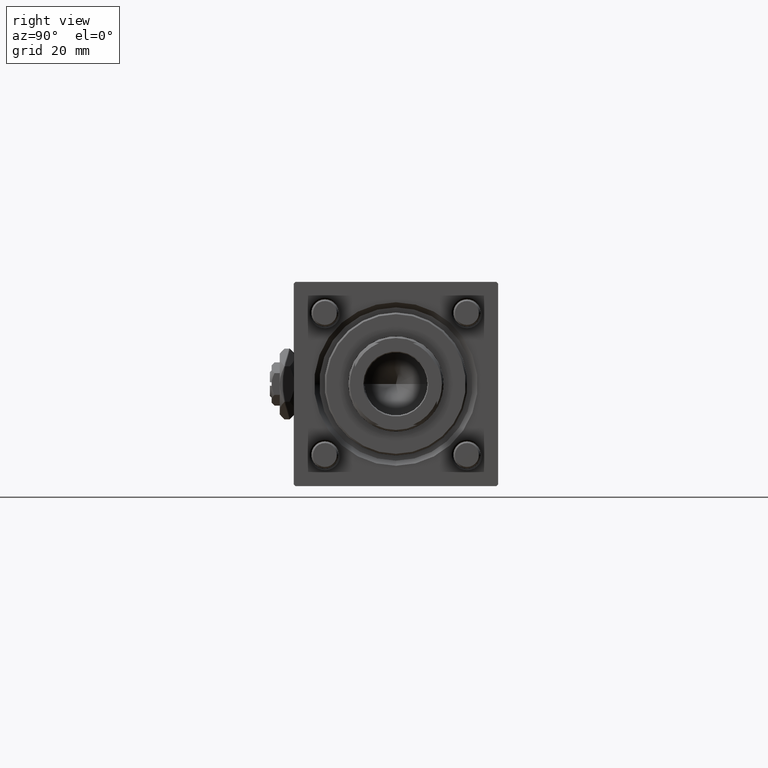
[diagram: clean part render]
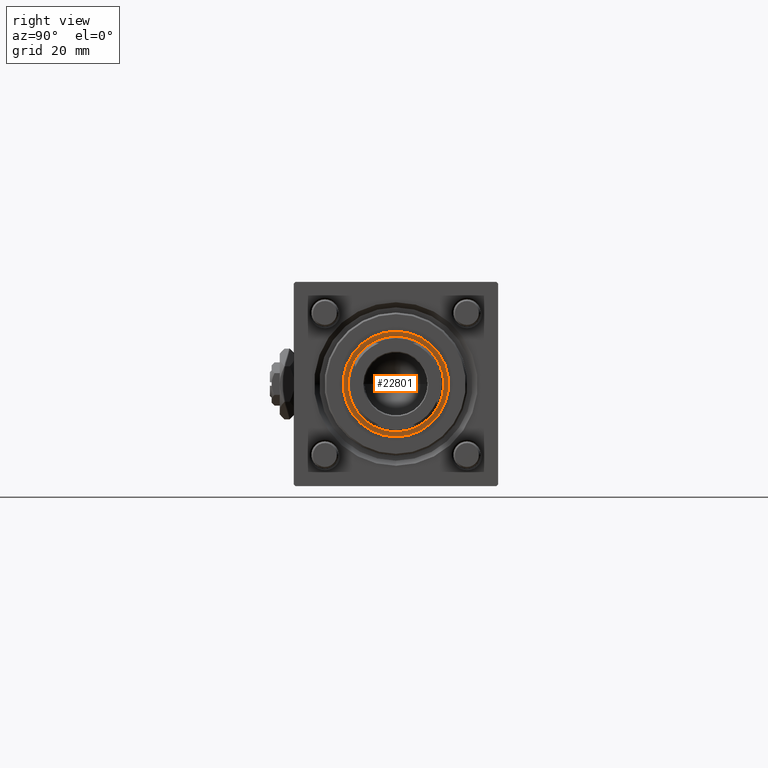
[diagram: same view with one face highlighted and labeled with its STEP entity id]
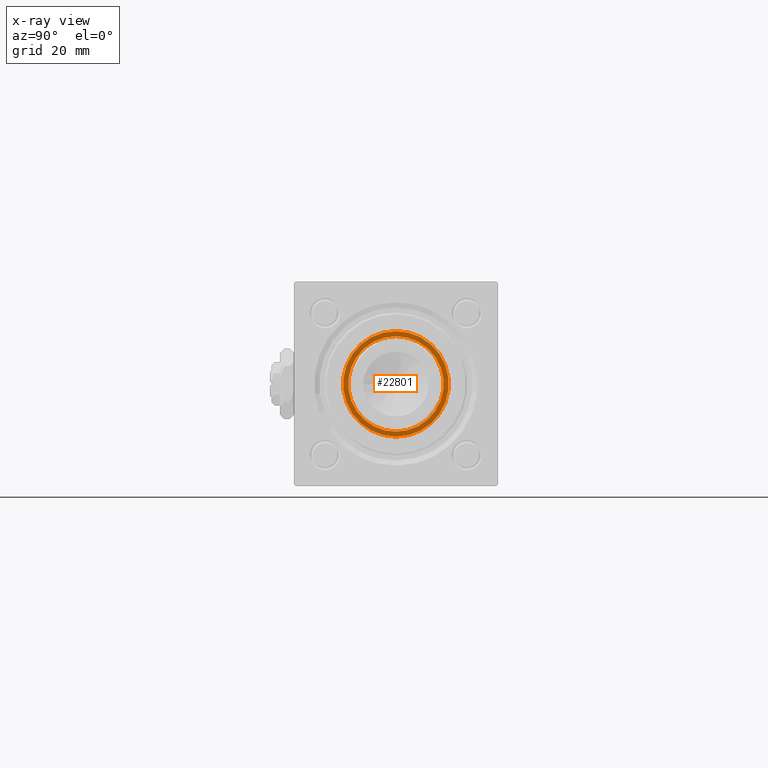
[diagram: x-ray of the same camera — body ghosted, the highlighted face saturated]
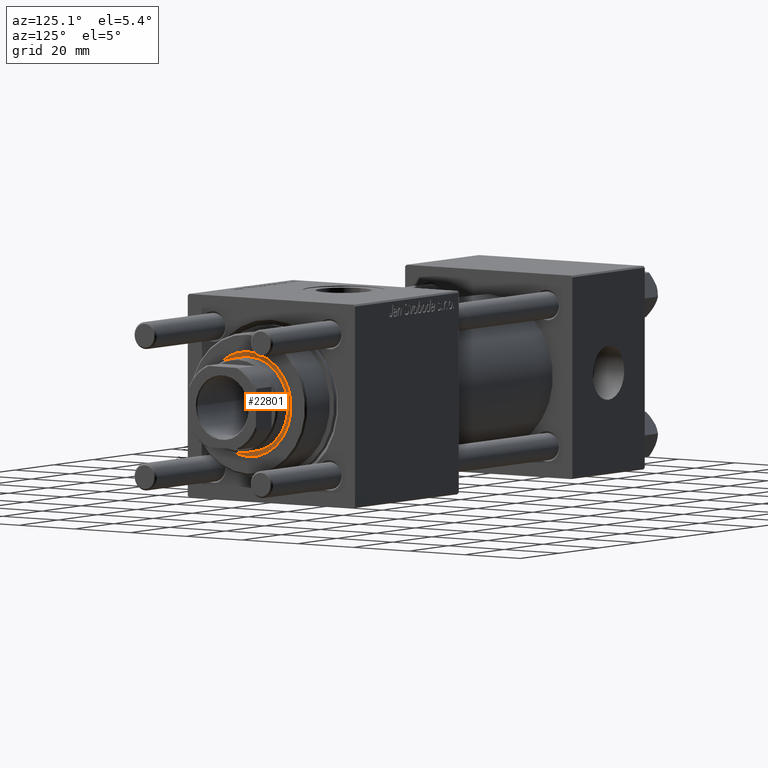
[diagram: same view with one face highlighted and labeled with its STEP entity id]
A machine part, right view. The second image highlights one B-rep face of the part: STEP entity #22801.
The next image is the same camera in x-ray: the body ghosted, the highlighted face saturated — about 0% of this face is hidden behind the body in this view.
A second angle (auxiliary view) of the same face is appended — the face is thin or edge-on in the first view.
In plain terms, the highlighted planar face has unit normal (1, 0, 0).
Its self-contained STEP definition (entity closure, byte-faithful):
#2033 = EDGE_LOOP ( 'NONE', ( #52396, #53183 ) ) ;
#9201 = VERTEX_POINT ( 'NONE', #15819 ) ;
#14238 = VERTEX_POINT ( 'NONE', #16444 ) ;
#15819 = CARTESIAN_POINT ( 'NONE',  ( 15.50000000000000000, 0.000000000000000000, 40.20000000000000284 ) ) ;
#16444 = CARTESIAN_POINT ( 'NONE',  ( 14.00000000000000178, 0.000000000000000000, 40.20000000000000284 ) ) ;
#16899 = AXIS2_PLACEMENT_3D ( 'NONE', #39539, #53436, #53734 ) ;
#17826 = DIRECTION ( 'NONE',  ( 0.000000000000000000, 0.000000000000000000, 1.000000000000000000 ) ) ;
#17846 = CIRCLE ( 'NONE', #28238, 14.00000000000000178 ) ;
#18334 = CARTESIAN_POINT ( 'NONE',  ( -15.50000000000000000, 1.898202538678397557E-15, 40.20000000000000284 ) ) ;
#18337 = DIRECTION ( 'NONE',  ( 1.000000000000000000, 0.000000000000000000, 0.000000000000000000 ) ) ;
#19977 = EDGE_CURVE ( 'NONE', #27617, #14238, #46110, .T. ) ;
#20337 = DIRECTION ( 'NONE',  ( -0.000000000000000000, -0.000000000000000000, -1.000000000000000000 ) ) ;
#20841 = DIRECTION ( 'NONE',  ( 0.000000000000000000, 0.000000000000000000, 1.000000000000000000 ) ) ;
#20878 = PLANE ( 'NONE',  #16899 ) ;
#22450 = EDGE_CURVE ( 'NONE', #14238, #27617, #17846, .T. ) ;
#22801 = ADVANCED_FACE ( 'NONE', ( #48710, #34482 ), #20878, .T. ) ;
#23081 = DIRECTION ( 'NONE',  ( -0.000000000000000000, -0.000000000000000000, -1.000000000000000000 ) ) ;
#24553 = CIRCLE ( 'NONE', #40647, 15.50000000000000000 ) ;
#24957 = EDGE_CURVE ( 'NONE', #27172, #9201, #24553, .T. ) ;
#25870 = CARTESIAN_POINT ( 'NONE',  ( 0.000000000000000000, 0.000000000000000000, 40.20000000000000284 ) ) ;
#26052 = ORIENTED_EDGE ( 'NONE', *, *, #19977, .T. ) ;
#26549 = ORIENTED_EDGE ( 'NONE', *, *, #22450, .T. ) ;
#27172 = VERTEX_POINT ( 'NONE', #18334 ) ;
#27617 = VERTEX_POINT ( 'NONE', #44956 ) ;
#28238 = AXIS2_PLACEMENT_3D ( 'NONE', #33096, #20337, #38426 ) ;
#31177 = CARTESIAN_POINT ( 'NONE',  ( 0.000000000000000000, 0.000000000000000000, 40.20000000000000284 ) ) ;
#33096 = CARTESIAN_POINT ( 'NONE',  ( 0.000000000000000000, 0.000000000000000000, 40.20000000000000284 ) ) ;
#34133 = EDGE_CURVE ( 'NONE', #9201, #27172, #53989, .T. ) ;
#34415 = EDGE_LOOP ( 'NONE', ( #26549, #26052 ) ) ;
#34482 = FACE_BOUND ( 'NONE', #34415, .T. ) ;
#36144 = CARTESIAN_POINT ( 'NONE',  ( 0.000000000000000000, 0.000000000000000000, 40.20000000000000284 ) ) ;
#38426 = DIRECTION ( 'NONE',  ( 1.000000000000000000, 0.000000000000000000, 0.000000000000000000 ) ) ;
#39539 = CARTESIAN_POINT ( 'NONE',  ( 0.000000000000000000, 0.000000000000000000, 40.20000000000000284 ) ) ;
#40647 = AXIS2_PLACEMENT_3D ( 'NONE', #31177, #17826, #49242 ) ;
#43048 = DIRECTION ( 'NONE',  ( 1.000000000000000000, 0.000000000000000000, 0.000000000000000000 ) ) ;
#44956 = CARTESIAN_POINT ( 'NONE',  ( -14.00000000000000178, 1.714505518806294835E-15, 40.20000000000000284 ) ) ;
#46110 = CIRCLE ( 'NONE', #48019, 14.00000000000000178 ) ;
#48019 = AXIS2_PLACEMENT_3D ( 'NONE', #36144, #23081, #18337 ) ;
#48710 = FACE_OUTER_BOUND ( 'NONE', #2033, .T. ) ;
#49242 = DIRECTION ( 'NONE',  ( 1.000000000000000000, 0.000000000000000000, 0.000000000000000000 ) ) ;
#49271 = AXIS2_PLACEMENT_3D ( 'NONE', #25870, #20841, #43048 ) ;
#52396 = ORIENTED_EDGE ( 'NONE', *, *, #34133, .T. ) ;
#53183 = ORIENTED_EDGE ( 'NONE', *, *, #24957, .T. ) ;
#53436 = DIRECTION ( 'NONE',  ( 0.000000000000000000, 0.000000000000000000, 1.000000000000000000 ) ) ;
#53734 = DIRECTION ( 'NONE',  ( 1.000000000000000000, 0.000000000000000000, -0.000000000000000000 ) ) ;
#53989 = CIRCLE ( 'NONE', #49271, 15.50000000000000000 ) ;